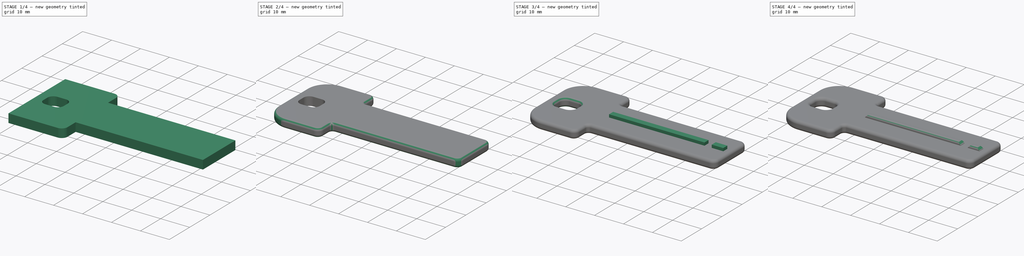
[diagram: build sequence overview — one tinted view per stage of 4, left to right]
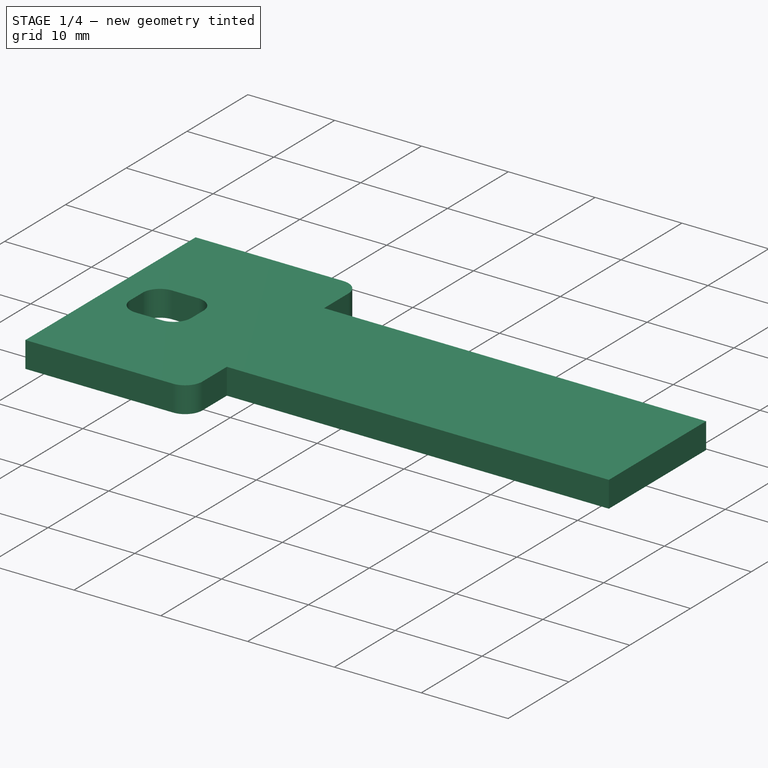
[diagram: stage 1 of 4 — iso view after this stage's code; geometry added in this stage tinted green]
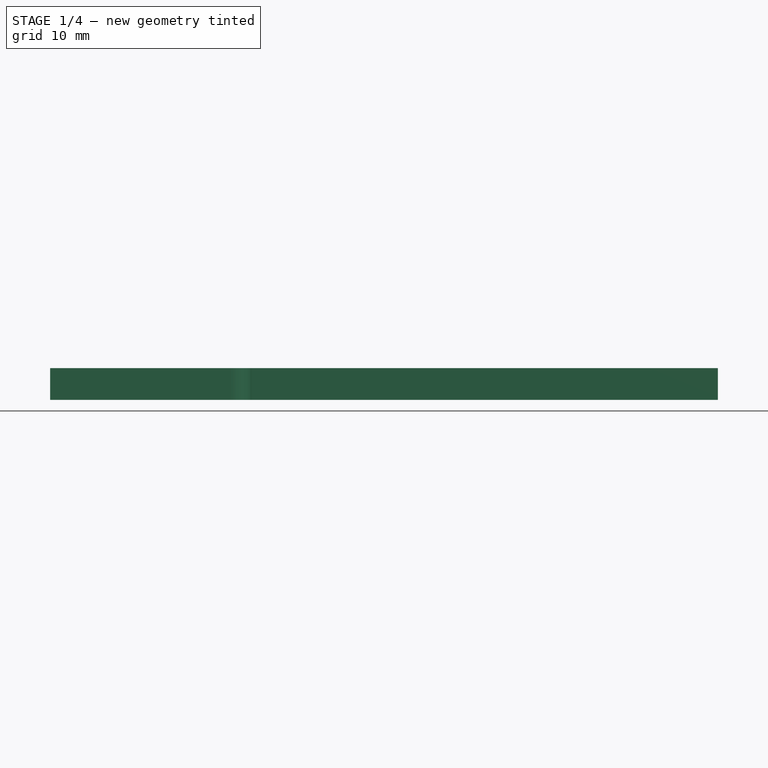
[diagram: stage 1 of 4 — front view after this stage's code; geometry added in this stage tinted green]
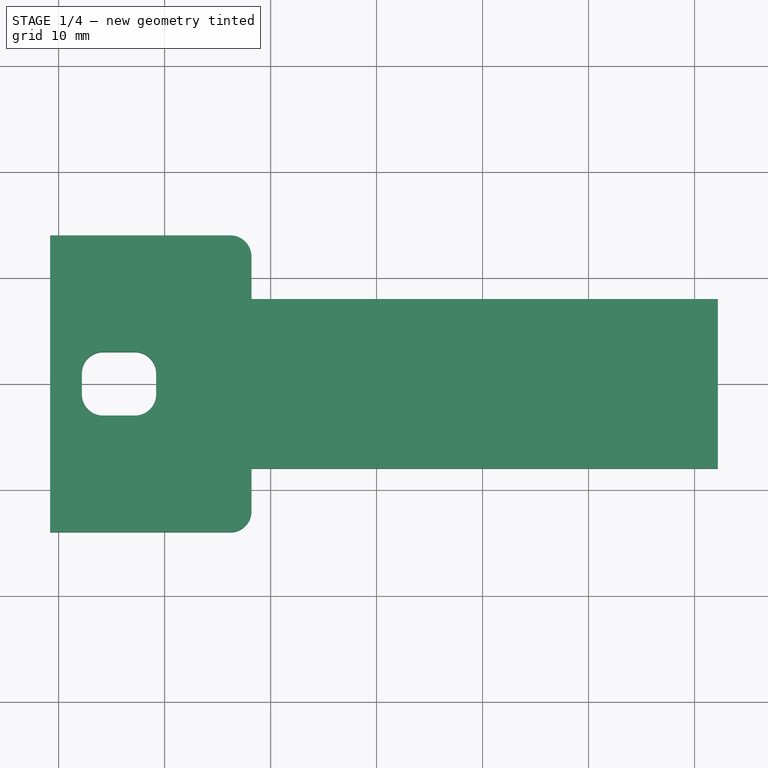
[diagram: stage 1 of 4 — top view after this stage's code; geometry added in this stage tinted green]
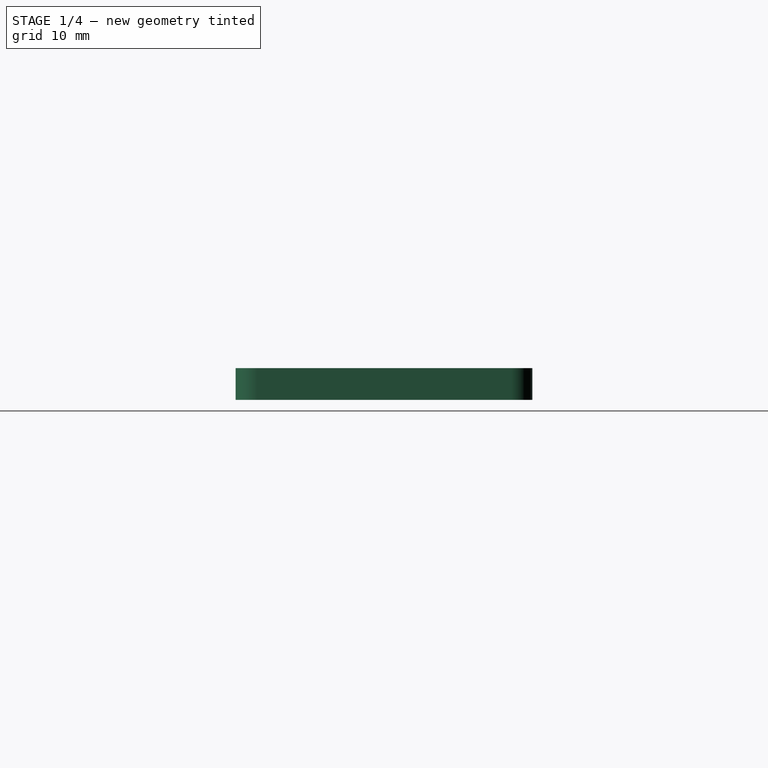
[diagram: stage 1 of 4 — right view after this stage's code; geometry added in this stage tinted green]
FCSTD DOCUMENT  (FreeCAD 0.16R)
Label: llave parking
License: All rights reserved
LicenseURL: http://en.wikipedia.org/wiki/All_rights_reserved
objects: PartDesign::Fillet×8, Sketcher::SketchObject×2, PartDesign::Pad×2, PartDesign::Chamfer×1
note: 15 computed .brp shape members not serialized (recipe doc carries the construction recipe); baked Part::Feature solids carry a one-line shape summary decoded from their .brp

FEATURE [Sketcher::SketchObject] Sketch
  sketch-geometry (12):
    g0: LineSegment StartX=-11.8002 StartY=8 StartZ=0 EndX=32.1998 EndY=8 EndZ=0
    g1: LineSegment StartX=32.1998 StartY=8 StartZ=0 EndX=32.1998 EndY=-8 EndZ=0
    g2: LineSegment StartX=32.1998 StartY=-8 StartZ=0 EndX=-11.8002 EndY=-8 EndZ=0
    g3: LineSegment StartX=-30.8002 StartY=14 StartZ=0 EndX=-11.8002 EndY=14 EndZ=0
    g4: LineSegment StartX=-11.8002 StartY=14 StartZ=0 EndX=-11.8002 EndY=8 EndZ=0
    g5: LineSegment StartX=-11.8002 StartY=-14 StartZ=0 EndX=-30.8002 EndY=-14 EndZ=0
    g6: LineSegment StartX=-30.8002 StartY=-14 StartZ=0 EndX=-30.8002 EndY=14 EndZ=0
    g7: LineSegment StartX=-11.8002 StartY=-8 StartZ=0 EndX=-11.8002 EndY=-14 EndZ=0
    g8: LineSegment StartX=-27.8002 StartY=3 StartZ=0 EndX=-20.8002 EndY=3 EndZ=0
    g9: LineSegment StartX=-20.8002 StartY=3 StartZ=0 EndX=-20.8002 EndY=-3 EndZ=0
    g10: LineSegment StartX=-20.8002 StartY=-3 StartZ=0 EndX=-27.8002 EndY=-3 EndZ=0
    g11: LineSegment StartX=-27.8002 StartY=-3 StartZ=0 EndX=-27.8002 EndY=3 EndZ=0
  constraints (34):
    c: Coincident(g0,g1)
    c: Coincident(g1,g2)
    c: Horizontal(g0)
    c: Horizontal(g2)
    c: Vertical(g1)
    c: DistanceY(g1,g1) = 16
    c: Symmetric(g1,g0,g-1)
    c: Coincident(g3,g4)
    c: Coincident(g7,g5)
    c: Coincident(g5,g6)
    c: Coincident(g6,g3)
    c: Horizontal(g3)
    c: Horizontal(g5)
    c: Vertical(g4)
    c: Vertical(g6)
    c: DistanceX(g5,g5) = 19
    c: DistanceY(g7,g3) = 28
    c: Symmetric(g3,g7,g-1)
    c: DistanceX(g3,g0) = 63
    c: Coincident(g4,g0)
    c: Coincident(g7,g2)
    c: Tangent(g4,g7)
    c: Coincident(g8,g9)
    c: Coincident(g9,g10)
    c: Coincident(g10,g11)
    c: Coincident(g11,g8)
    c: Horizontal(g8)
    c: Horizontal(g10)
    c: Vertical(g9)
    c: Vertical(g11)
    c: Symmetric(g9,g8,g-1)
    c: DistanceX(g10,g10) = 7
    c: DistanceY(g11,g11) = 6
    c: DistanceX(g5,g10) = 3
FEATURE [PartDesign::Pad] Pad
  Length = 3
  Length2 = 100
  Sketch = -> Sketch
  Type = 0
FEATURE [PartDesign::Fillet] Fillet
  Base = -> Pad [Edge32,Edge29,Edge26,Edge25]
  Radius = 299999
FEATURE [PartDesign::Fillet] Fillet001
  Base = -> Fillet [Edge45,Edge48]
  Radius = 2
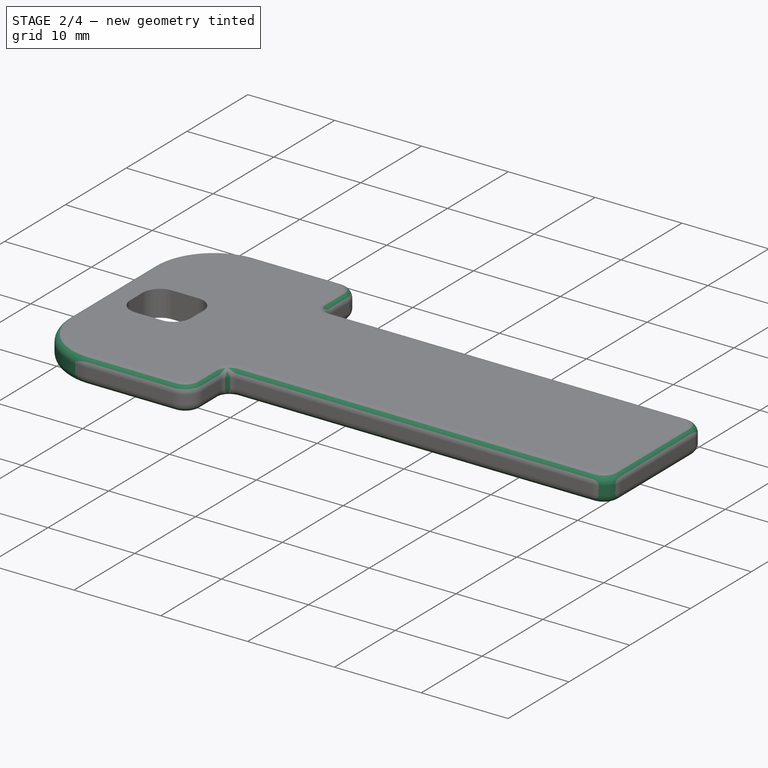
[diagram: stage 2 of 4 — iso view after this stage's code; geometry added in this stage tinted green]
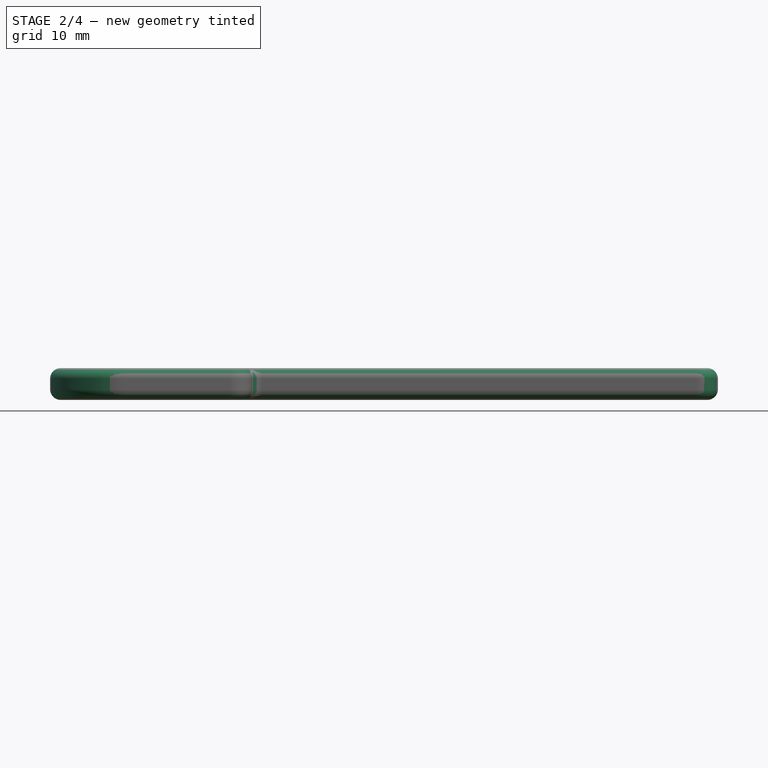
[diagram: stage 2 of 4 — front view after this stage's code; geometry added in this stage tinted green]
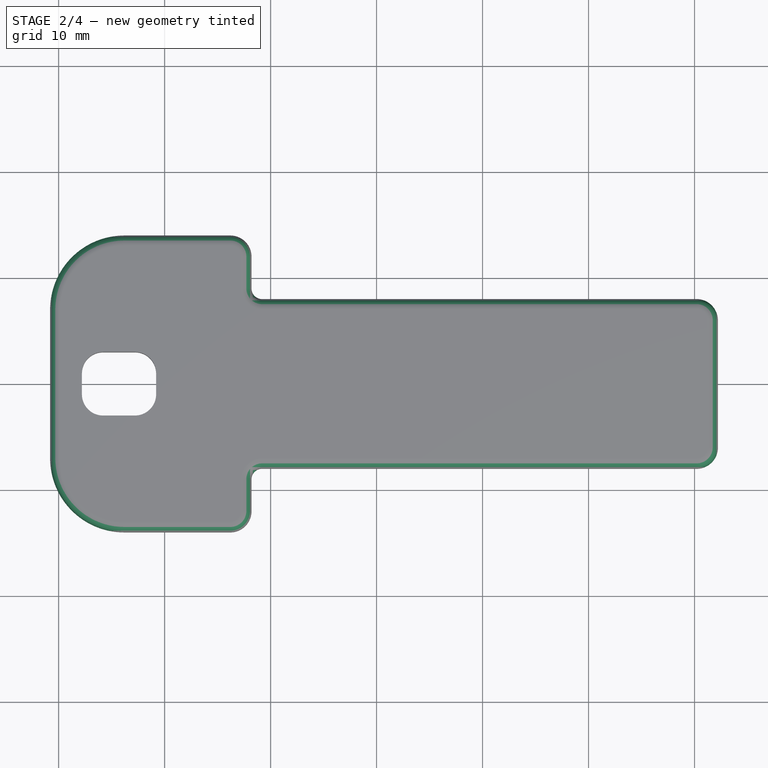
[diagram: stage 2 of 4 — top view after this stage's code; geometry added in this stage tinted green]
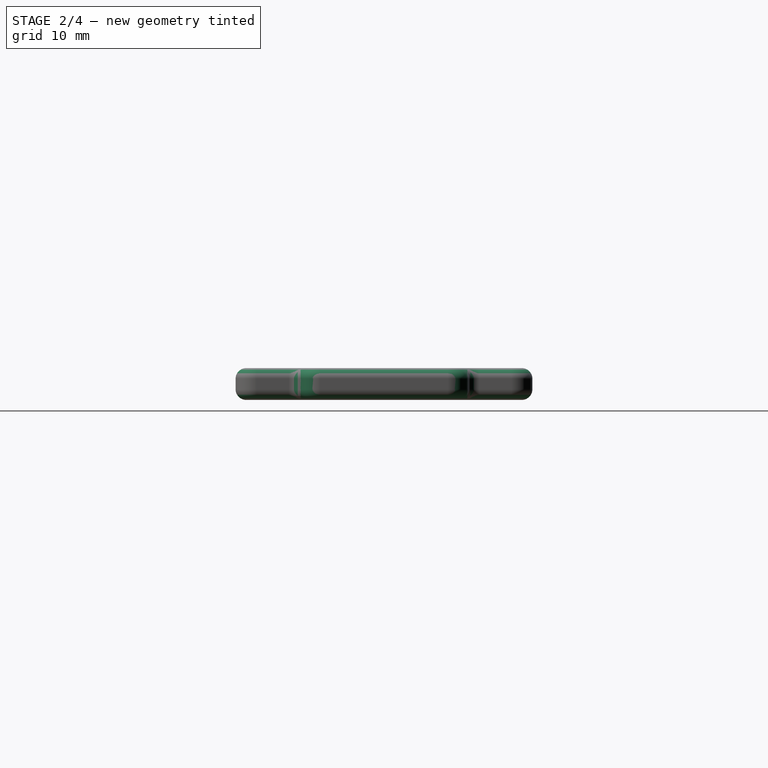
[diagram: stage 2 of 4 — right view after this stage's code; geometry added in this stage tinted green]
FEATURE [PartDesign::Fillet] Fillet002
  Base = -> Fillet001 [Edge30,Edge26]
  Radius = 7
FEATURE [PartDesign::Fillet] Fillet003
  Base = -> Fillet002 [Edge34,Edge38]
  Radius = 2
FEATURE [PartDesign::Fillet] Fillet004
  Base = -> Fillet003 [Edge50,Edge2,Edge27,Edge1,Edge24,Edge25,Edge4,Edge31,Edge3,Edge29,Edge5,Edge33,Edge7,Edge37,Edge9,Edge41,Edge11,Edge45,Edge13,Edge49,Edge12,Edge47,Edge8,Edge38,Edge39,Edge10,Edge43,Edge6,Edge35,Edge14]
  Radius = 1
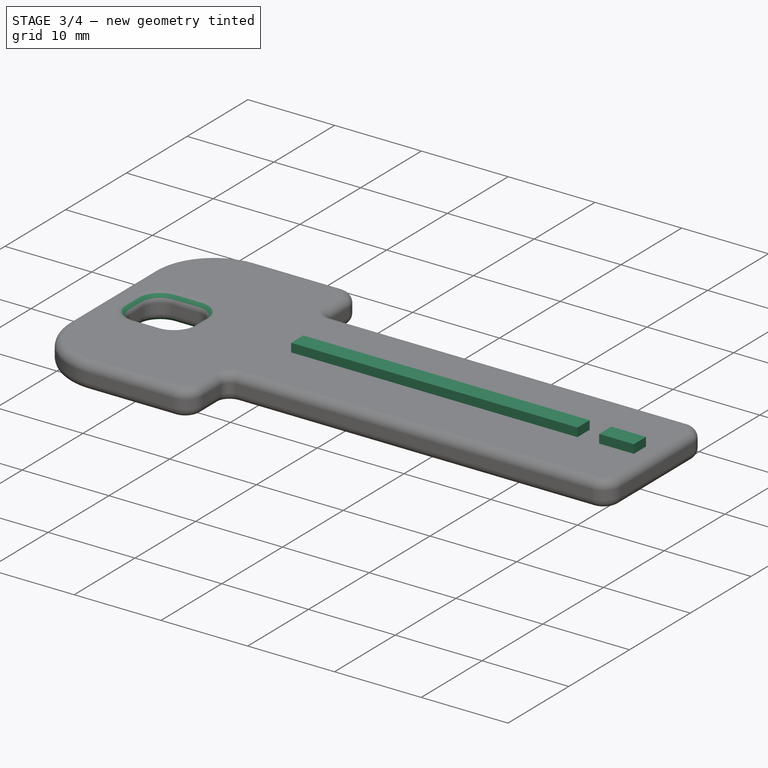
[diagram: stage 3 of 4 — iso view after this stage's code; geometry added in this stage tinted green]
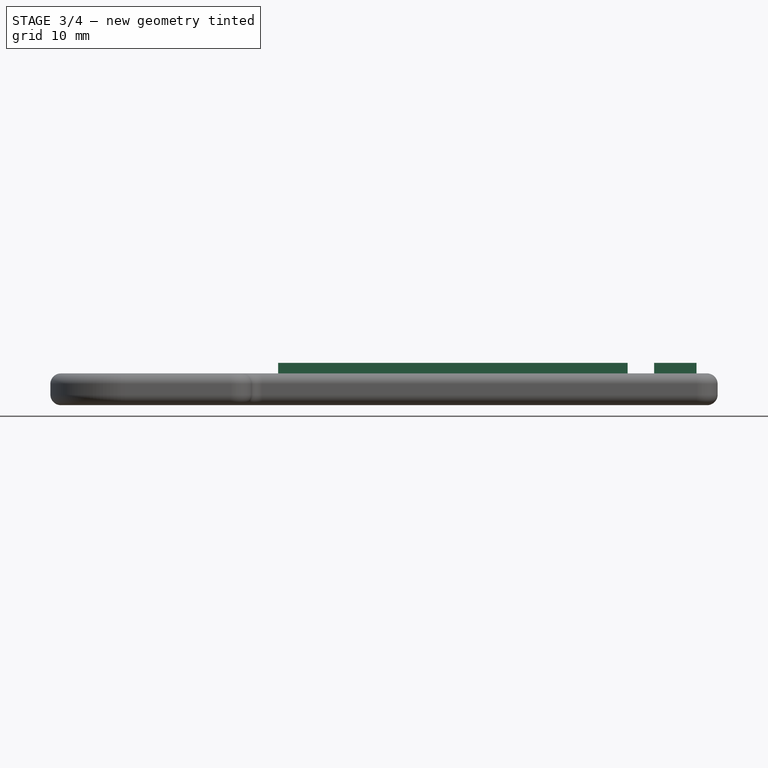
[diagram: stage 3 of 4 — front view after this stage's code; geometry added in this stage tinted green]
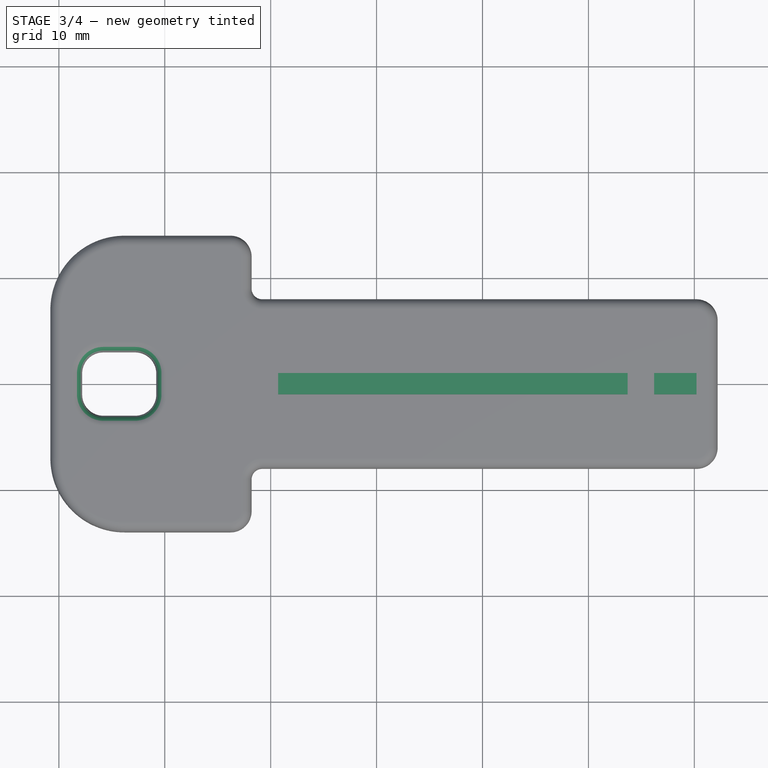
[diagram: stage 3 of 4 — top view after this stage's code; geometry added in this stage tinted green]
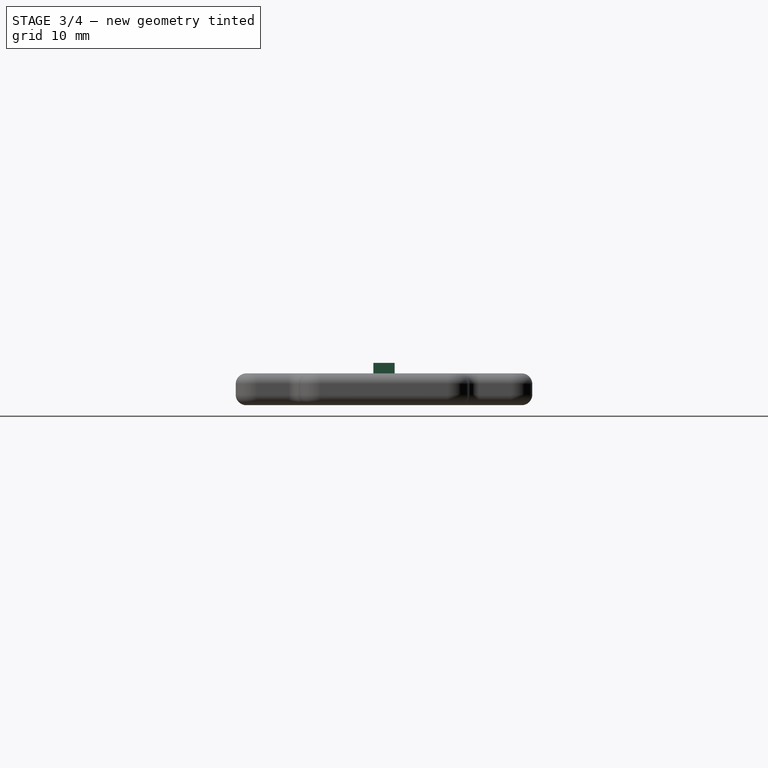
[diagram: stage 3 of 4 — right view after this stage's code; geometry added in this stage tinted green]
FEATURE [PartDesign::Fillet] Fillet005
  Base = -> Fillet004 [Edge22,Edge69,Edge20,Edge65,Edge18,Edge61,Edge24,Edge72,Edge23,Edge71,Edge21,Edge67,Edge19,Edge63,Edge17,Edge59]
  Radius = 1
FEATURE [Sketcher::SketchObject] Sketch001
  ExternalGeometry = -> [Fillet005]
  Placement = pos=(0,0,3) rot=(0,0,1;0rad)
  Support = -> Fillet005 [Face74]
  sketch-geometry (8):
    g0: LineSegment StartX=26.1998 StartY=1 StartZ=0 EndX=30.1998 EndY=1 EndZ=0
    g1: LineSegment StartX=30.1998 StartY=1 StartZ=0 EndX=30.1998 EndY=-1 EndZ=0
    g2: LineSegment StartX=30.1998 StartY=-1 StartZ=0 EndX=26.1998 EndY=-1 EndZ=0
    g3: LineSegment StartX=26.1998 StartY=-1 StartZ=0 EndX=26.1998 EndY=1 EndZ=0
    g4: LineSegment StartX=-9.30015 StartY=1 StartZ=0 EndX=23.6998 EndY=1 EndZ=0
    g5: LineSegment StartX=23.6998 StartY=1 StartZ=0 EndX=23.6998 EndY=-1 EndZ=0
    g6: LineSegment StartX=23.6998 StartY=-1 StartZ=0 EndX=-9.30015 EndY=-1 EndZ=0
    g7: LineSegment StartX=-9.30015 StartY=-1 StartZ=0 EndX=-9.30015 EndY=1 EndZ=0
  constraints (24):
    c: Coincident(g0,g1)
    c: Coincident(g1,g2)
    c: Coincident(g2,g3)
    c: Coincident(g3,g0)
    c: Horizontal(g0)
    c: Horizontal(g2)
    c: Vertical(g1)
    c: Vertical(g3)
    c: DistanceX(g0,g0) = 4
    c: Symmetric(g2,g0,g-1)
    c: DistanceY(g1,g1) = 2
    c: DistanceX(g-3,g2) = 37
    c: Coincident(g4,g5)
    c: Coincident(g5,g6)
    c: Coincident(g6,g7)
    c: Coincident(g7,g4)
    c: Horizontal(g4)
    c: Horizontal(g6)
    c: Vertical(g5)
    c: Vertical(g7)
    c: DistanceY(g5,g5) = 2
    c: DistanceX(g4,g4) = 33
    c: Symmetric(g6,g4,g-1)
    c: DistanceX(g5,g2) = 2.5
FEATURE [PartDesign::Pad] Pad001
  Length = 1
  Length2 = 100
  Sketch = -> Sketch001
  Type = 0
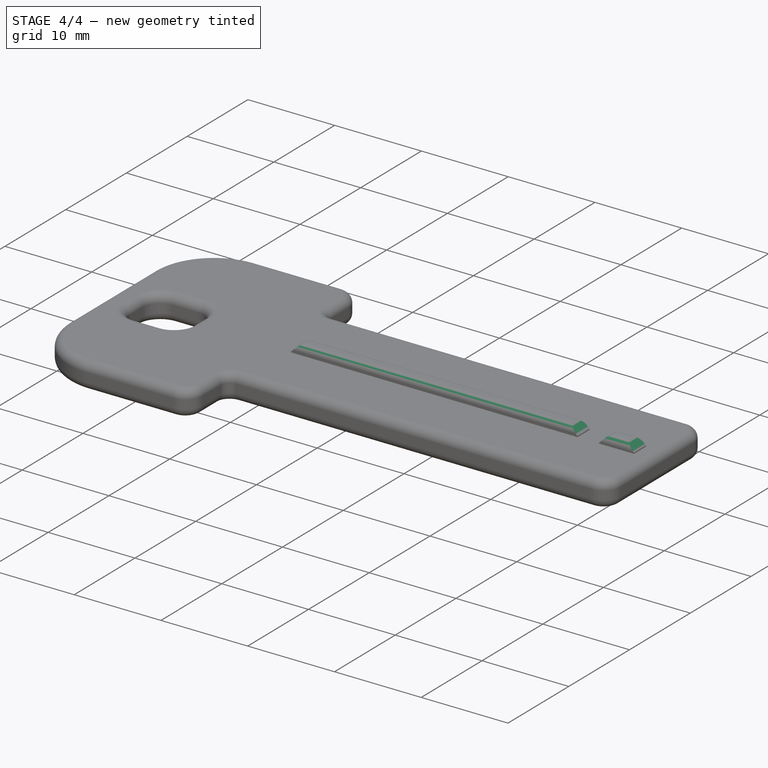
[diagram: stage 4 of 4 — iso view after this stage's code; geometry added in this stage tinted green]
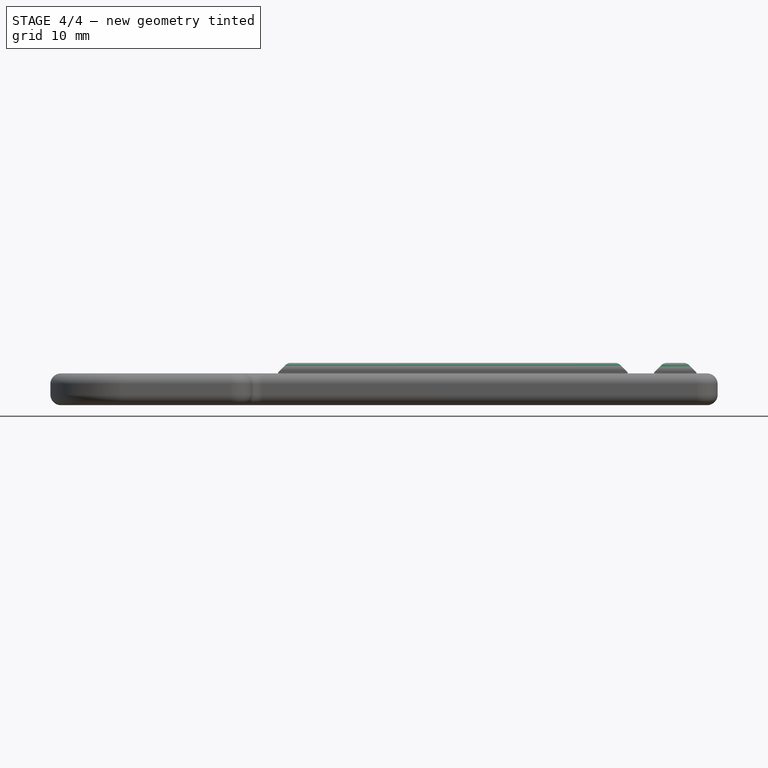
[diagram: stage 4 of 4 — front view after this stage's code; geometry added in this stage tinted green]
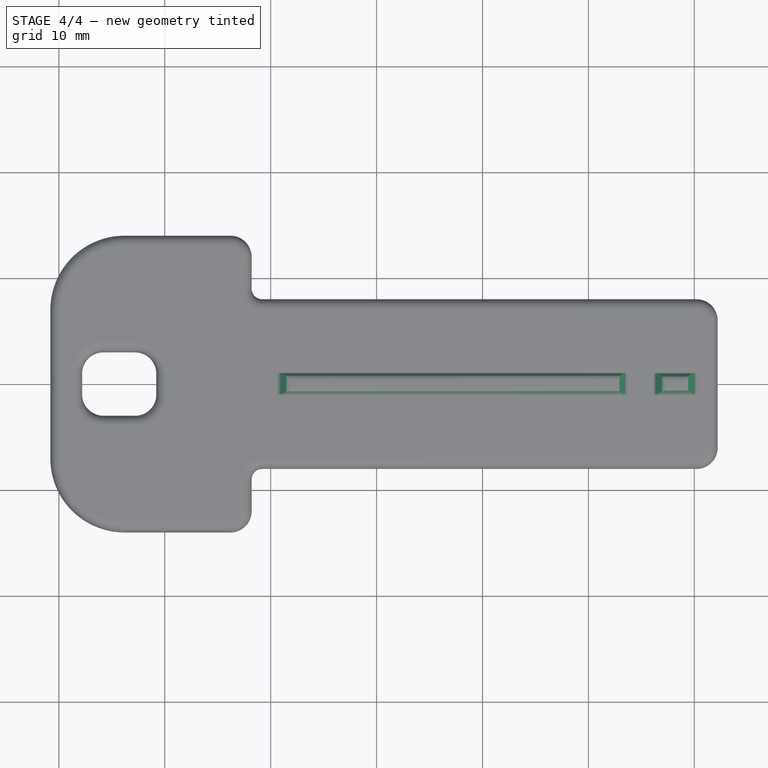
[diagram: stage 4 of 4 — top view after this stage's code; geometry added in this stage tinted green]
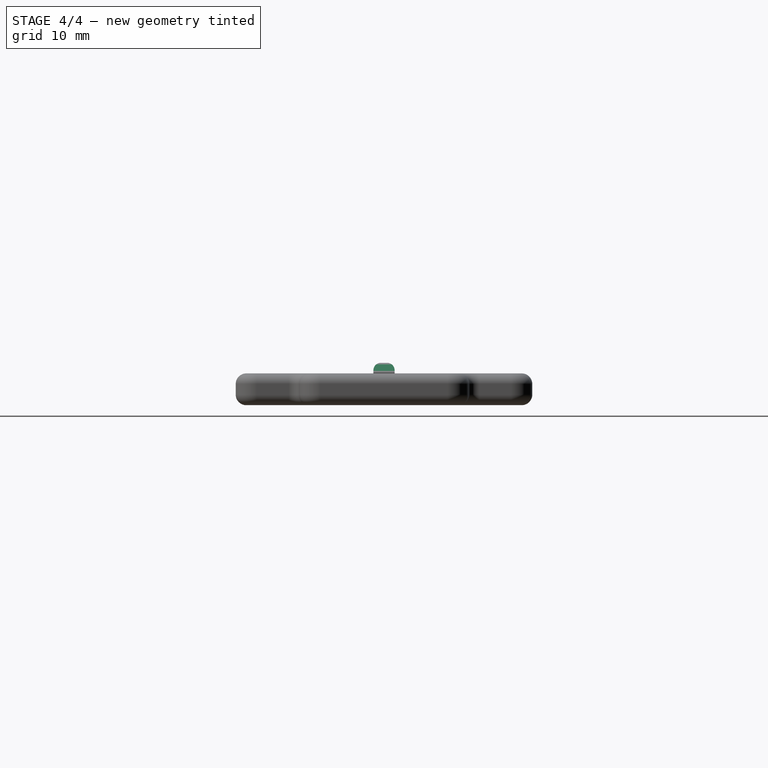
[diagram: stage 4 of 4 — right view after this stage's code; geometry added in this stage tinted green]
FEATURE [PartDesign::Chamfer] Chamfer
  Base = -> Pad001 [Edge186,Edge184,Edge181,Edge191]
  Size = 0.9
FEATURE [PartDesign::Fillet] Fillet006
  Base = -> Chamfer [Edge139,Edge89,Edge84,Edge140]
  Radius = 0.99999
FEATURE [PartDesign::Fillet] Fillet007
  Base = -> Fillet006 [Edge93,Edge151,Edge100,Edge152]
  Radius = 0.9999
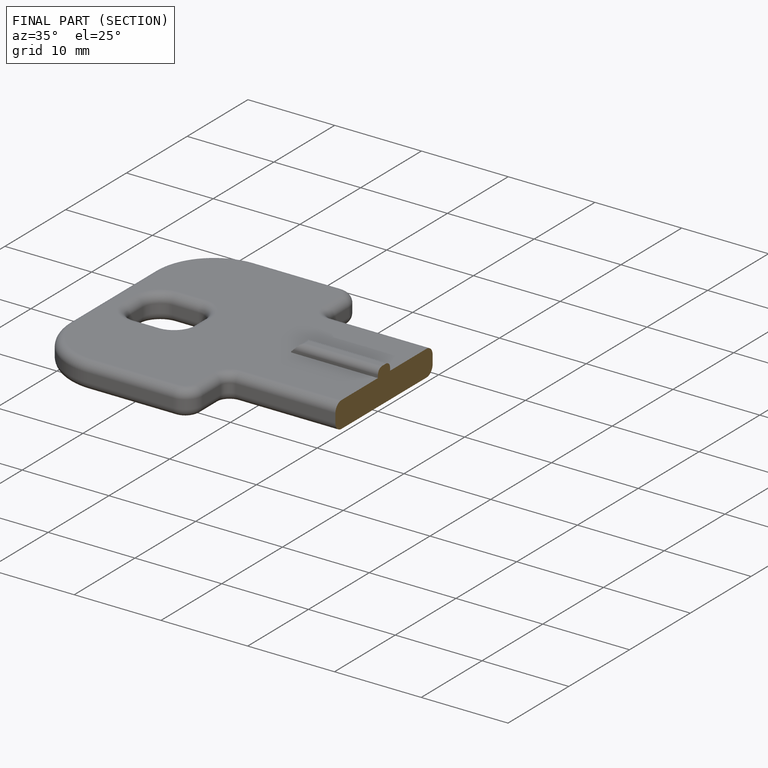
[diagram: finished part — half-section view (interior)]
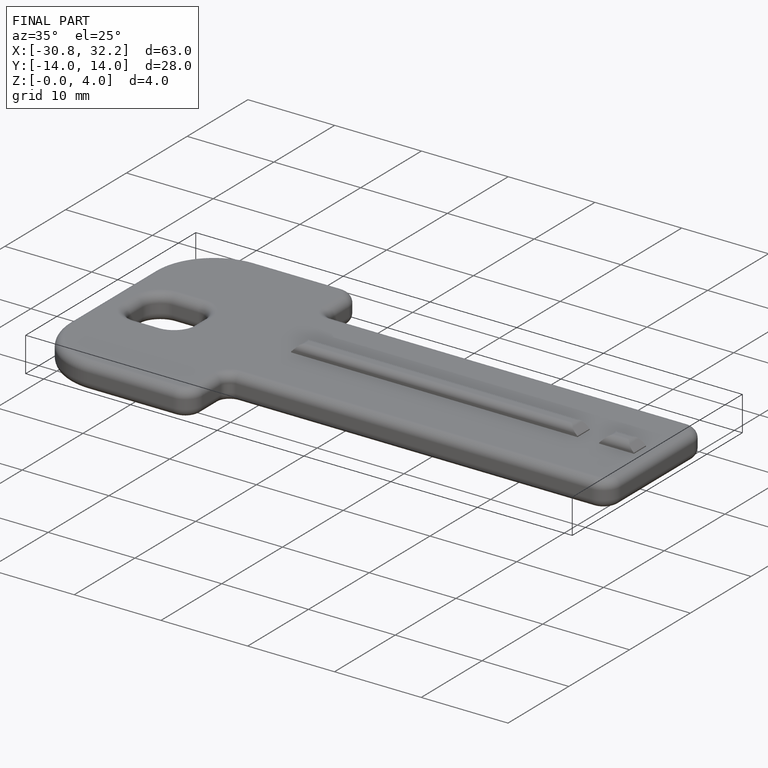
[diagram: finished part — iso view with bounding-box wireframe]
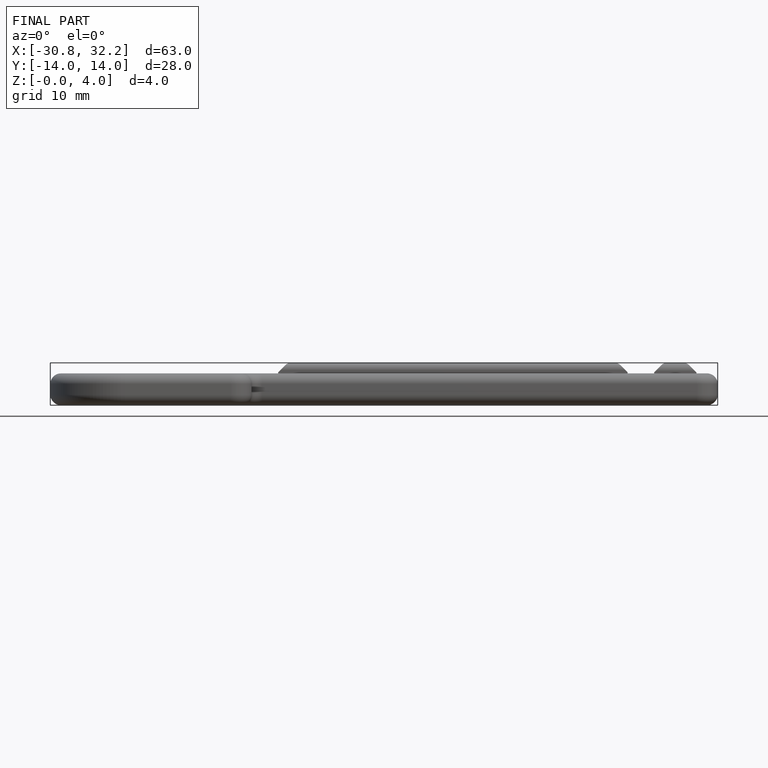
[diagram: finished part — front view with bounding-box wireframe]
